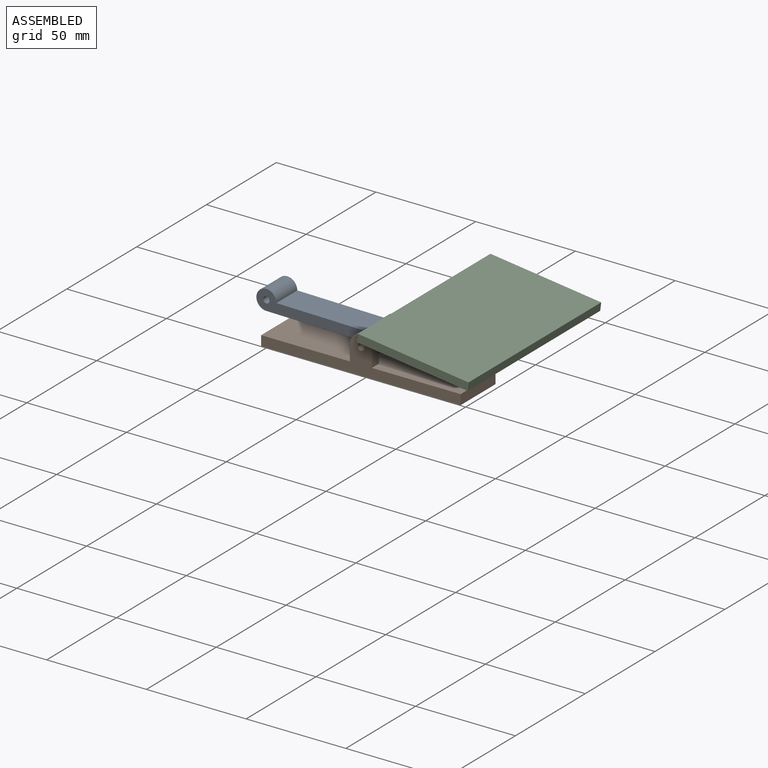
[diagram: assembled view]
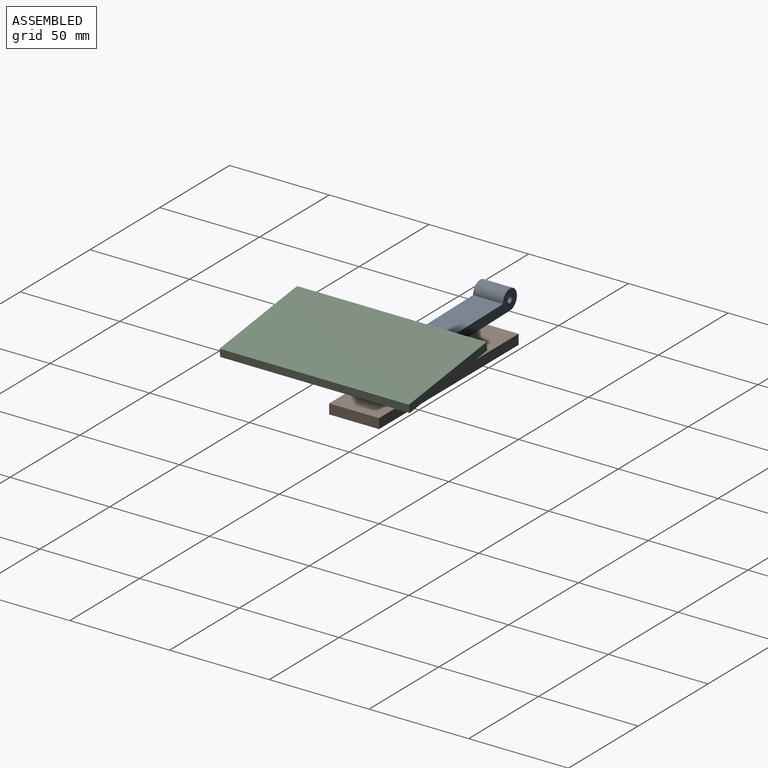
[diagram: assembled view, second angle]
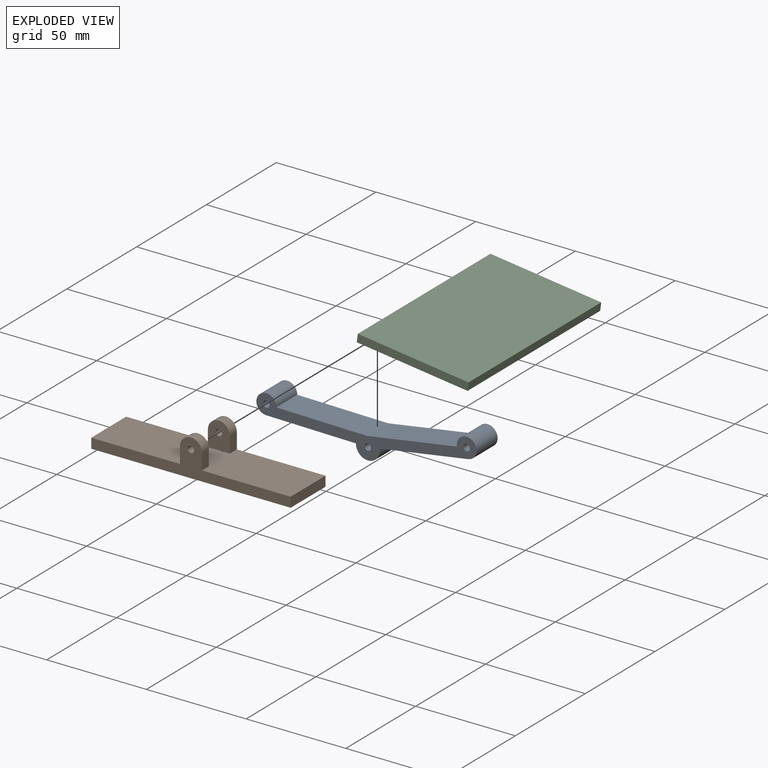
[diagram: exploded view]
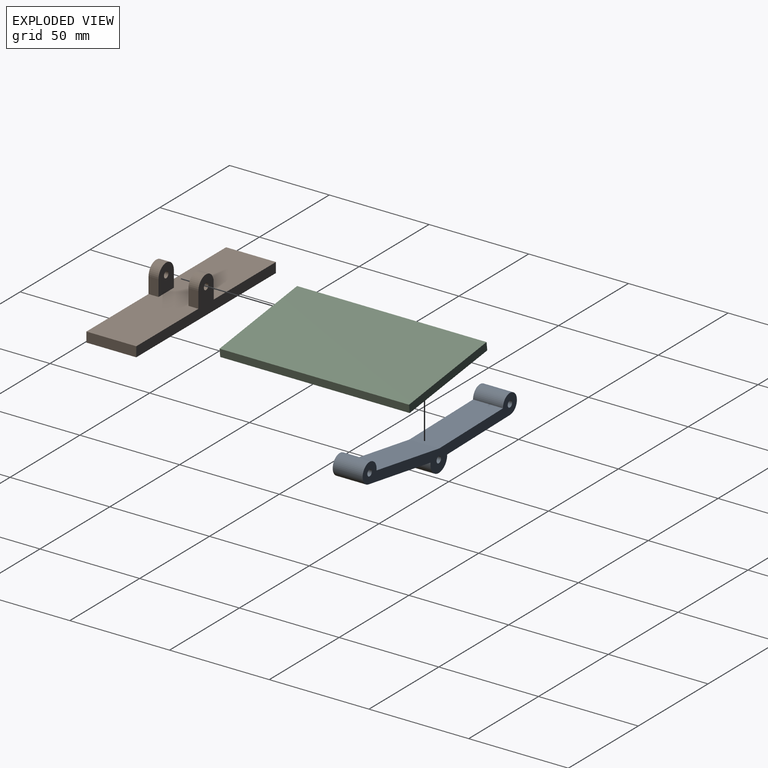
[diagram: exploded view, second angle]
ASSEMBLY  parts=3 mates=2
PART A: 12 faces, bbox 110.7x20.4x15 mm
  f0: plane 44.83x15mm, normal (0.09,-1,0), area 675mm2, adj f1,f6,f7,f8
  f1: cylinder r=5mm len=15mm, axis (0,0,-1), area 353.4mm2, adj f0,f2,f7,f8
  f2: plane 45.39x15mm, normal (-0.09,1,0), area 683.4mm2, adj f1,f3,f7,f8
  f3: plane 45.39x15mm, normal (0.09,1,0), area 683.4mm2, adj f2,f4,f7,f8
  f4: cylinder r=5mm len=15mm, axis (0,0,-1), area 353.4mm2, adj f3,f5,f7,f8
  f5: plane 44.83x15mm, normal (-0.09,-1,0), area 675mm2, adj f4,f6,f7,f8
  f6: cylinder r=6mm len=15mm, axis (0,0,-1), area 298.5mm2, adj f0,f5,f7,f8
  f7: plane 110.74x20.43mm, normal (0,0,1), area 661.2mm2, adj f0,f1,f2,f3,f4,f5,f6,f9
  f8: plane 110.74x20.43mm, normal (0,0,-1), area 661.2mm2, adj f0,f1,f2,f3,f4,f5,f6,f9
  f9: cylinder r=1.6mm len=15mm, axis (0,0,-1), area 150.8mm2, adj f7,f8
  f10: cylinder r=1.6mm len=15mm, axis (0,0,-1), area 150.8mm2, adj f7,f8
  f11: cylinder r=1.6mm len=15mm, axis (0,0,-1), area 150.8mm2, adj f7,f8
PART B: 18 faces, bbox 100x18.5x25 mm
  f0: cylinder r=5.5mm len=11mm, axis (0,0,-1), area 86.4mm2, adj f2,f4,f14,f15
  f1: cylinder r=5.5mm len=11mm, axis (0,0,-1), area 86.4mm2, adj f5,f12,f13,f16
  f2: plane 8x5mm, normal (-1,0,0), area 40mm2, adj f0,f6,f14,f15
  f3: cylinder r=1.6mm len=5mm, axis (0,0,-1), area 50.3mm2, adj f14,f15
  f4: plane 8x5mm, normal (1,0,0), area 40mm2, adj f0,f10,f14,f15
  f5: plane 8x5mm, normal (-1,0,0), area 40mm2, adj f1,f6,f13,f16
  f6: plane 44.5x25mm, normal (0,1,0), area 1112.5mm2, adj f2,f5,f7,f13,f14,f17
  f7: plane 25x5mm, normal (-1,0,0), area 125mm2, adj f6,f8,f13,f14
  f8: plane 100x25mm, normal (0,-1,0), area 2500mm2, adj f7,f9,f13,f14
  f9: plane 25x5mm, normal (1,0,0), area 125mm2, adj f8,f10,f13,f14
  f10: plane 44.5x25mm, normal (0,1,0), area 1112.5mm2, adj f4,f9,f12,f13,f14,f17
  f11: cylinder r=1.6mm len=5mm, axis (0,0,-1), area 50.3mm2, adj f13,f16
  f12: plane 8x5mm, normal (1,0,0), area 40mm2, adj f1,f10,f13,f16
  f13: plane 100x18.5mm, normal (0,0,1), area 627.5mm2, adj f1,f5,f6,f7,f8,f9,f10,f11
  f14: plane 100x18.5mm, normal (0,0,-1), area 627.5mm2, adj f0,f2,f3,f4,f6,f7,f8,f9
  f15: plane 13.5x11mm, normal (0,0,1), area 127.5mm2, adj f0,f2,f3,f4,f17
  f16: plane 13.5x11mm, normal (0,0,-1), area 127.5mm2, adj f1,f5,f11,f12,f17
  f17: plane 15x11mm, normal (0,1,0), area 165mm2, adj f6,f10,f15,f16
PART C: 18 faces, bbox 56x17x95 mm
  f0: plane 5x5mm, normal (-1,0,0), area 25mm2, adj f1,f4,f8,f16
  f1: cylinder r=8mm len=16mm, axis (0,0,-1), area 125.7mm2, adj f0,f2,f4,f16
  f2: plane 5x5mm, normal (1,0,0), area 25mm2, adj f1,f4,f8,f16
  f3: cylinder r=1.6mm len=5mm, axis (0,0,-1), area 50.3mm2, adj f4,f16
  f4: plane 16x13mm, normal (0,0,1), area 172.5mm2, adj f0,f1,f2,f3,f8
  f5: plane 16x13mm, normal (0,0,-1), area 172.5mm2, adj f6,f7,f8,f12,f13
  f6: cylinder r=8mm len=16mm, axis (0,0,-1), area 125.7mm2, adj f5,f7,f13,f17
  f7: plane 5x5mm, normal (1,0,0), area 25mm2, adj f5,f6,f8,f17
  f8: plane 95x56mm, normal (0,-1,0), area 5160mm2, adj f0,f2,f4,f5,f7,f9,f11,f13
  f9: plane 95x4mm, normal (1,0,0), area 380mm2, adj f8,f10,f14,f15
  f10: plane 95x56mm, normal (0,1,0), area 5320mm2, adj f9,f11,f14,f15
  f11: plane 95x4mm, normal (-1,0,0), area 380mm2, adj f8,f10,f14,f15
  f12: cylinder r=1.6mm len=5mm, axis (0,0,-1), area 50.3mm2, adj f5,f17
  f13: plane 5x5mm, normal (-1,0,0), area 25mm2, adj f5,f6,f8,f17
  f14: plane 56x4mm, normal (0,0,-1), area 224mm2, adj f8,f9,f10,f11
  f15: plane 56x4mm, normal (0,0,1), area 224mm2, adj f8,f9,f10,f11
  f16: plane 16x13mm, normal (0,0,-1), area 172.5mm2, adj f0,f1,f2,f3,f8
  f17: plane 16x13mm, normal (0,0,1), area 172.5mm2, adj f6,f7,f8,f12,f13
PLACE A rot(axis=(1,-0.04,0.04),90.1deg) t=(49.64,0,18.01)mm
PLACE B rot(axis=(1,0,0),90deg) t=(50,0,18.02)mm
PLACE C rot(axis=(-0.05,-0.71,-0.71),174.8deg) t=(49.05,-25,28.07)mm
MATE revolute A.f6 <-> B.f0  axis (0,-1,0) through (50,-20,13)mm
MATE revolute C.f1 <-> A.f1  axis (0,1,0) through (99.57,-20,25.98)mm
